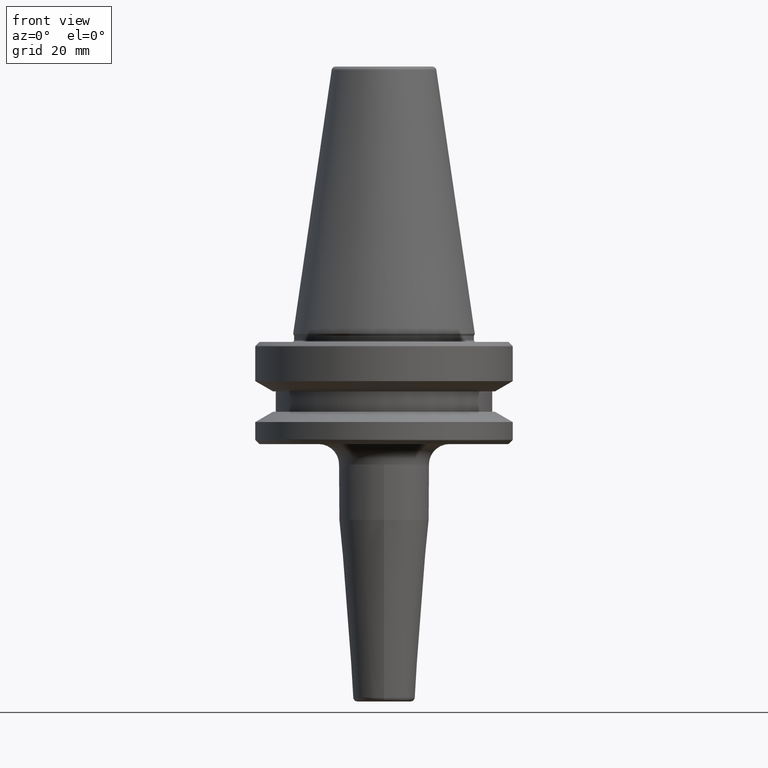
[diagram: clean part render]
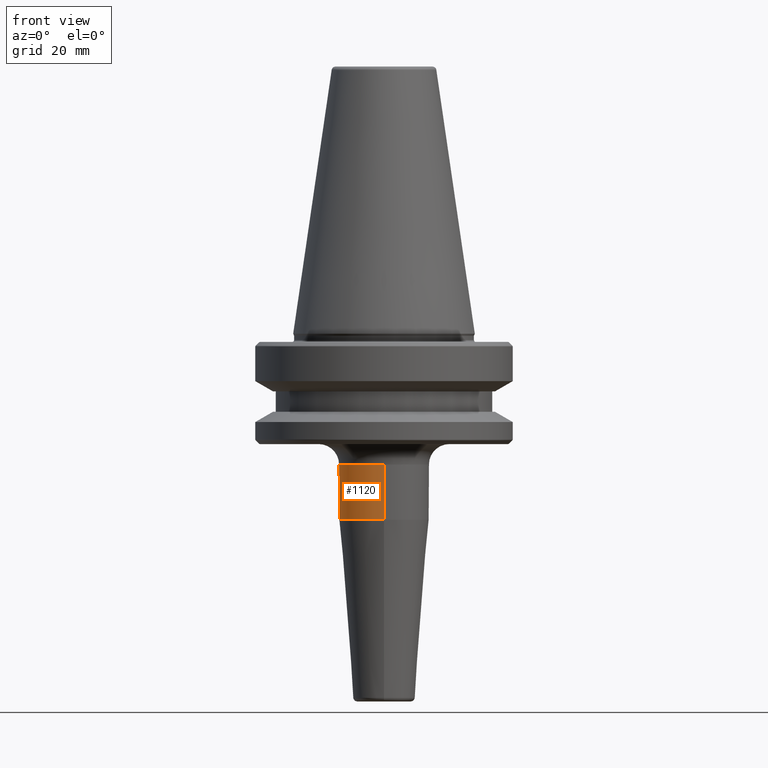
[diagram: same view with one face highlighted and labeled with its STEP entity id]
A machine part, front view. The second image highlights one B-rep face of the part: STEP entity #1120.
In plain terms, the highlighted cylindrical surface (partial cylindrical patch) has radius 11 mm, axis along (-0, 0, -1).
Its self-contained STEP definition (entity closure, byte-faithful):
#64 = ORIENTED_EDGE ( 'NONE', *, *, #172, .F. ) ;
#86 = CIRCLE ( 'NONE', #1263, 11.00000000000002300 ) ;
#113 = VERTEX_POINT ( 'NONE', #884 ) ;
#120 = DIRECTION ( 'NONE',  ( -0.0000000000000000000, 5.573023147301645900E-016, -1.000000000000000000 ) ) ;
#132 = CARTESIAN_POINT ( 'NONE',  ( 0.0000000000000000000, 1.032585523982868200E-014, -45.52828342338444400 ) ) ;
#172 = EDGE_CURVE ( 'NONE', #455, #1057, #300, .T. ) ;
#209 = DIRECTION ( 'NONE',  ( 0.0000000000000000000, 0.0000000000000000000, -1.000000000000000000 ) ) ;
#213 = CIRCLE ( 'NONE', #900, 11.00000000000002300 ) ;
#240 = DIRECTION ( 'NONE',  ( 0.0000000000000000000, 1.000000000000000000, 6.308085367188378400E-016 ) ) ;
#273 = EDGE_CURVE ( 'NONE', #455, #702, #213, .T. ) ;
#275 = VECTOR ( 'NONE', #120, 1000.000000000000000 ) ;
#277 = EDGE_CURVE ( 'NONE', #1057, #113, #959, .T. ) ;
#285 = VECTOR ( 'NONE', #995, 1000.000000000000000 ) ;
#300 = LINE ( 'NONE', #1106, #275 ) ;
#352 = CARTESIAN_POINT ( 'NONE',  ( 0.0000000000000000000, 2.786511573650823900E-015, -32.00000000000000000 ) ) ;
#451 = DIRECTION ( 'NONE',  ( -1.000000000000000000, 0.0000000000000000000, 0.0000000000000000000 ) ) ;
#455 = VERTEX_POINT ( 'NONE', #811 ) ;
#460 = ORIENTED_EDGE ( 'NONE', *, *, #273, .T. ) ;
#641 = CARTESIAN_POINT ( 'NONE',  ( 0.0000000000000000000, 11.00000000000002700, -32.00000000000000000 ) ) ;
#656 = DIRECTION ( 'NONE',  ( 0.0000000000000000000, 1.000000000000000000, 0.0000000000000000000 ) ) ;
#702 = VERTEX_POINT ( 'NONE', #862 ) ;
#704 = CARTESIAN_POINT ( 'NONE',  ( 0.0000000000000000000, 11.00000000000005900, -90.00000000000000000 ) ) ;
#718 = EDGE_CURVE ( 'NONE', #1264, #113, #1039, .T. ) ;
#744 = CARTESIAN_POINT ( 'NONE',  ( 0.0000000000000000000, -11.00000000000001100, -45.52828342338445100 ) ) ;
#780 = ORIENTED_EDGE ( 'NONE', *, *, #1256, .T. ) ;
#790 = CARTESIAN_POINT ( 'NONE',  ( 0.0000000000000000000, 2.786511573650823900E-015, -32.00000000000000000 ) ) ;
#811 = CARTESIAN_POINT ( 'NONE',  ( 1.347111479062092000E-015, -11.00000000000001800, -32.00000000000000000 ) ) ;
#822 = DIRECTION ( 'NONE',  ( -0.0000000000000000000, 5.573023147301644900E-016, -1.000000000000000000 ) ) ;
#862 = CARTESIAN_POINT ( 'NONE',  ( -11.00000000000002300, 2.786511573650823900E-015, -32.00000000000000000 ) ) ;
#884 = CARTESIAN_POINT ( 'NONE',  ( 1.347111479062091200E-015, 11.00000000000003000, -45.52828342338443700 ) ) ;
#887 = DIRECTION ( 'NONE',  ( -1.000000000000000000, 0.0000000000000000000, 0.0000000000000000000 ) ) ;
#896 = EDGE_LOOP ( 'NONE', ( #64, #460, #780, #971, #949 ) ) ;
#900 = AXIS2_PLACEMENT_3D ( 'NONE', #790, #209, #887 ) ;
#924 = CYLINDRICAL_SURFACE ( 'NONE', #1091, 11.00000000000002300 ) ;
#949 = ORIENTED_EDGE ( 'NONE', *, *, #277, .F. ) ;
#959 = CIRCLE ( 'NONE', #969, 11.00000000000002000 ) ;
#969 = AXIS2_PLACEMENT_3D ( 'NONE', #132, #822, #240 ) ;
#971 = ORIENTED_EDGE ( 'NONE', *, *, #718, .T. ) ;
#995 = DIRECTION ( 'NONE',  ( -0.0000000000000000000, 5.573023147301645900E-016, -1.000000000000000000 ) ) ;
#1036 = DIRECTION ( 'NONE',  ( 0.0000000000000000000, 0.0000000000000000000, -1.000000000000000000 ) ) ;
#1039 = LINE ( 'NONE', #704, #285 ) ;
#1051 = CARTESIAN_POINT ( 'NONE',  ( 0.0000000000000000000, 3.511004582800035900E-014, -90.00000000000000000 ) ) ;
#1057 = VERTEX_POINT ( 'NONE', #744 ) ;
#1091 = AXIS2_PLACEMENT_3D ( 'NONE', #1051, #1248, #656 ) ;
#1106 = CARTESIAN_POINT ( 'NONE',  ( 1.347111479062091600E-015, -10.99999999999998900, -90.00000000000000000 ) ) ;
#1120 = ADVANCED_FACE ( 'NONE', ( #1246 ), #924, .T. ) ;
#1246 = FACE_OUTER_BOUND ( 'NONE', #896, .T. ) ;
#1248 = DIRECTION ( 'NONE',  ( -0.0000000000000000000, 5.573023147301644900E-016, -1.000000000000000000 ) ) ;
#1256 = EDGE_CURVE ( 'NONE', #702, #1264, #86, .T. ) ;
#1263 = AXIS2_PLACEMENT_3D ( 'NONE', #352, #1036, #451 ) ;
#1264 = VERTEX_POINT ( 'NONE', #641 ) ;